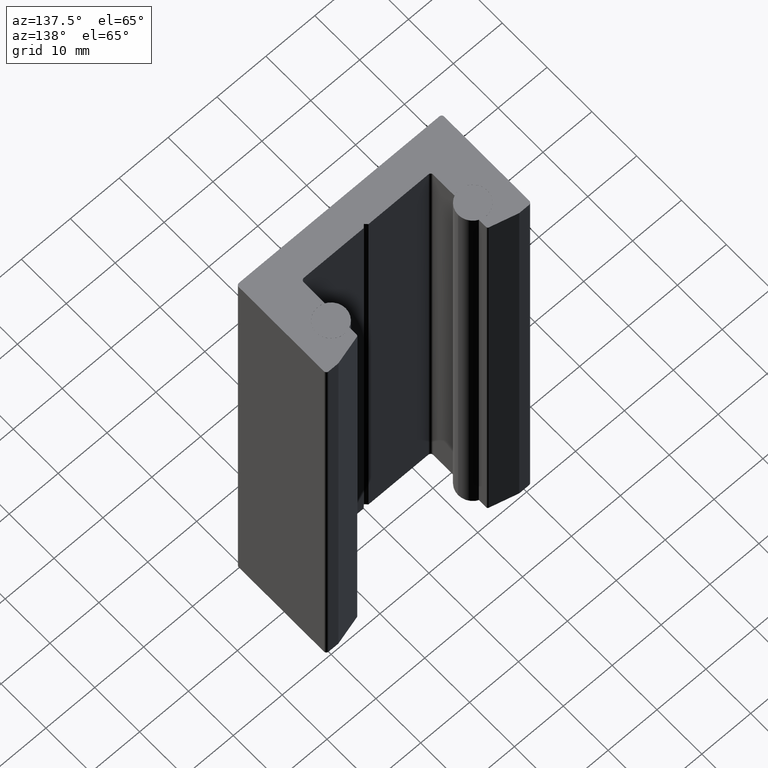
[diagram: clean part render]
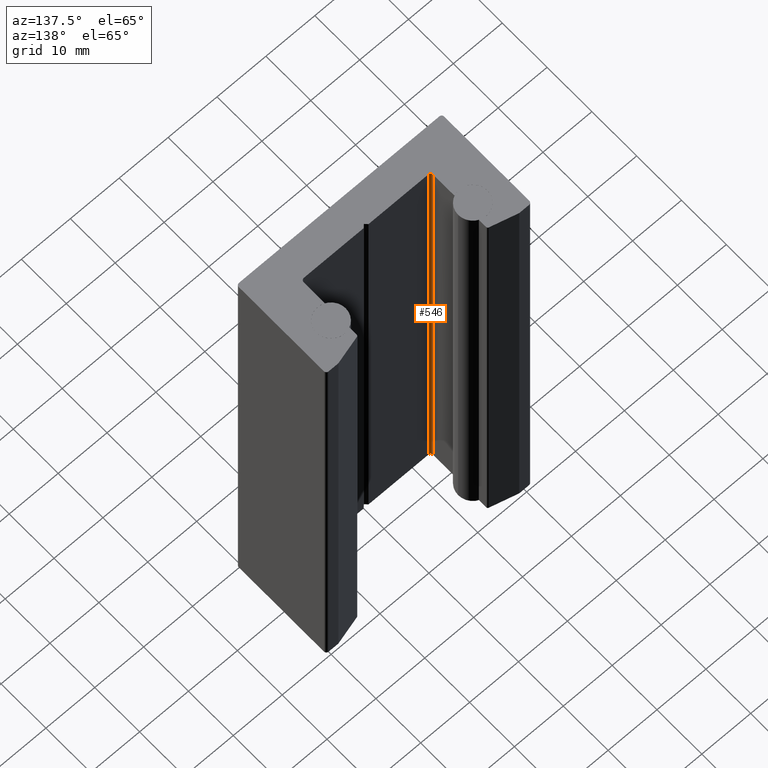
[diagram: same view with one face highlighted and labeled with its STEP entity id]
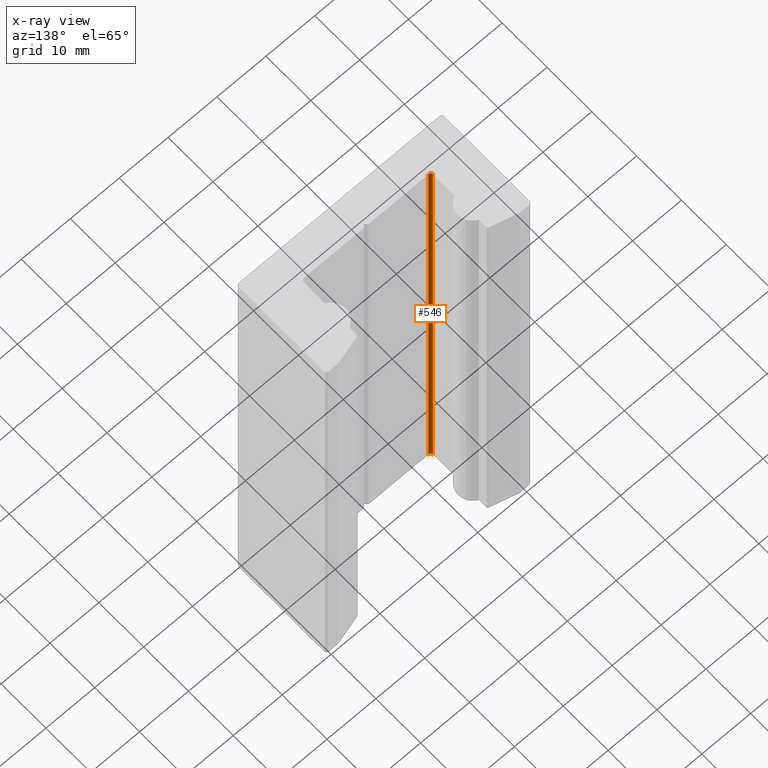
[diagram: x-ray of the same camera — body ghosted, the highlighted face saturated]
A machine part, auxiliary view. The second image highlights one B-rep face of the part: STEP entity #546.
The next image is the same camera in x-ray: the body ghosted, the highlighted face saturated — about 0% of this face is hidden behind the body in this view.
In plain terms, the highlighted cylindrical surface (edge-blend (fillet) strip) has radius 0.5 mm, axis along (0, 0, 1).
Its self-contained STEP definition (entity closure, byte-faithful):
#55=FACE_OUTER_BOUND('',#85,.T.);
#85=EDGE_LOOP('',(#415,#416,#417,#418));
#133=LINE('',#940,#189);
#134=LINE('',#943,#190);
#189=VECTOR('',#756,10.);
#190=VECTOR('',#759,10.);
#230=CIRCLE('',#648,0.5);
#234=CIRCLE('',#655,0.5);
#264=VERTEX_POINT('',#911);
#265=VERTEX_POINT('',#913);
#275=VERTEX_POINT('',#939);
#276=VERTEX_POINT('',#941);
#318=EDGE_CURVE('',#265,#264,#230,.T.);
#331=EDGE_CURVE('',#264,#275,#133,.T.);
#332=EDGE_CURVE('',#275,#276,#234,.T.);
#333=EDGE_CURVE('',#276,#265,#134,.T.);
#415=ORIENTED_EDGE('',*,*,#318,.T.);
#416=ORIENTED_EDGE('',*,*,#331,.T.);
#417=ORIENTED_EDGE('',*,*,#332,.T.);
#418=ORIENTED_EDGE('',*,*,#333,.T.);
#532=CYLINDRICAL_SURFACE('',#654,0.5);
#546=ADVANCED_FACE('',(#55),#532,.F.);
#648=AXIS2_PLACEMENT_3D('',#914,#733,#734);
#654=AXIS2_PLACEMENT_3D('',#938,#754,#755);
#655=AXIS2_PLACEMENT_3D('',#942,#757,#758);
#733=DIRECTION('center_axis',(0.,0.,-1.));
#734=DIRECTION('ref_axis',(-0.707106781186548,-0.707106781186548,0.));
#754=DIRECTION('center_axis',(0.,0.,1.));
#755=DIRECTION('ref_axis',(-0.707106781186548,-0.707106781186548,0.));
#756=DIRECTION('',(0.,0.,1.));
#757=DIRECTION('center_axis',(0.,0.,1.));
#758=DIRECTION('ref_axis',(-0.707106781186548,-0.707106781186548,0.));
#759=DIRECTION('',(0.,0.,-1.));
#911=CARTESIAN_POINT('',(-13.25,6.5,-50.));
#913=CARTESIAN_POINT('',(-12.75,6.,-50.));
#914=CARTESIAN_POINT('Origin',(-12.75,6.5,-50.));
#938=CARTESIAN_POINT('Origin',(-12.75,6.5,0.));
#939=CARTESIAN_POINT('',(-13.25,6.5,50.));
#940=CARTESIAN_POINT('',(-13.25,6.5,0.));
#941=CARTESIAN_POINT('',(-12.75,6.,50.));
#942=CARTESIAN_POINT('Origin',(-12.75,6.5,50.));
#943=CARTESIAN_POINT('',(-12.75,6.,0.));